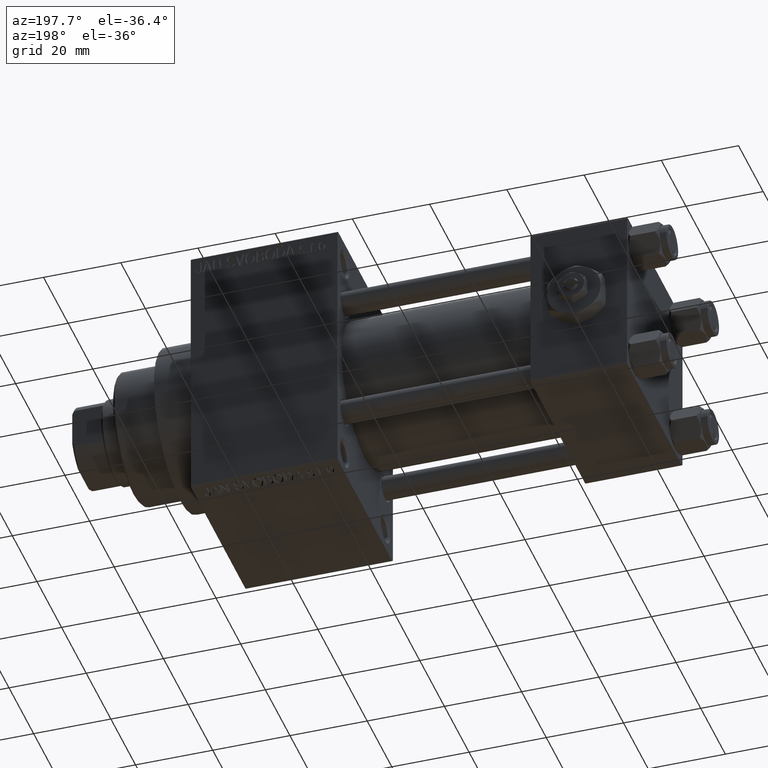
[diagram: clean part render]
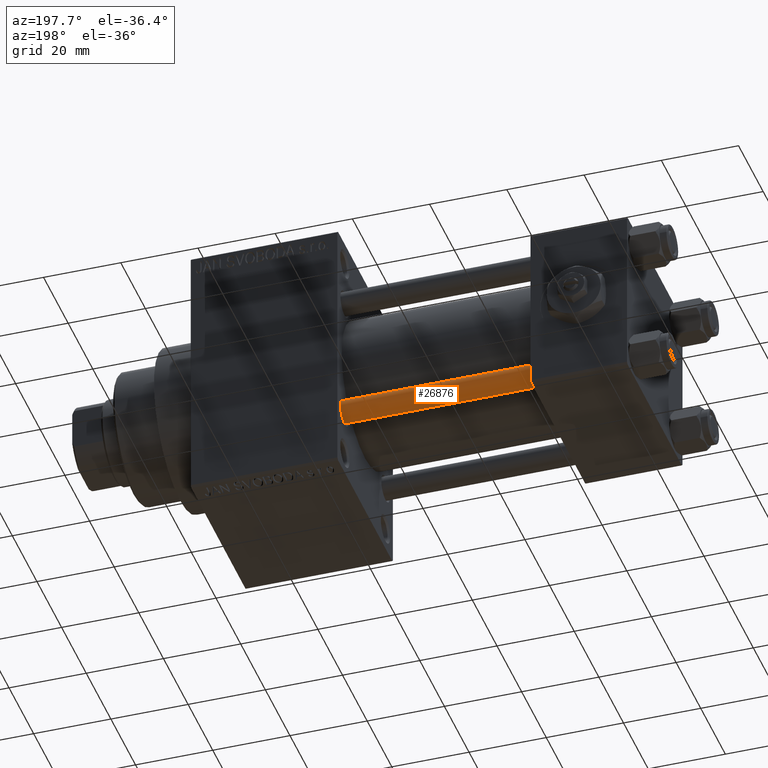
[diagram: same view with one face highlighted and labeled with its STEP entity id]
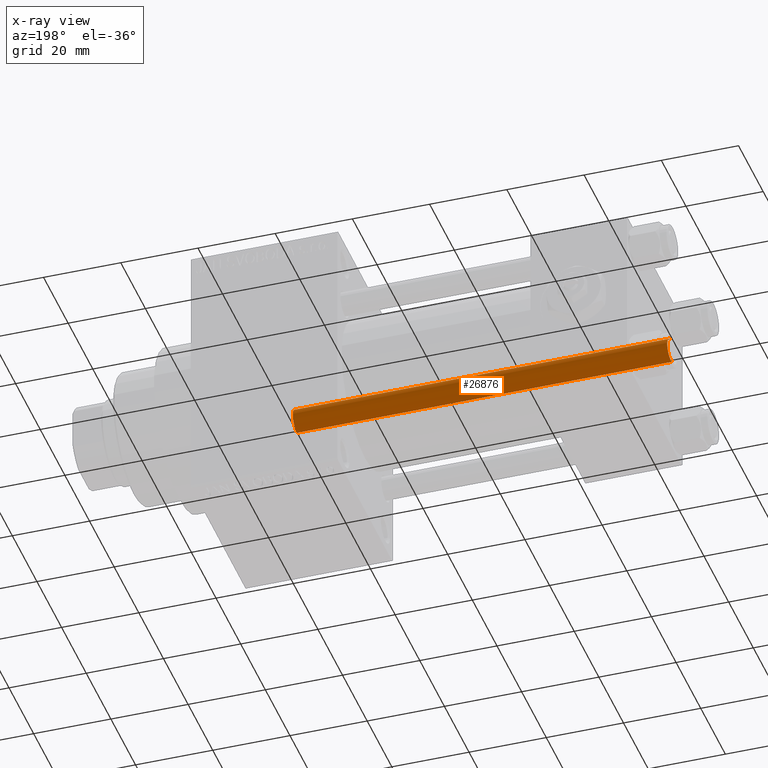
[diagram: x-ray of the same camera — body ghosted, the highlighted face saturated]
A machine part, auxiliary view. The second image highlights one B-rep face of the part: STEP entity #26876.
The next image is the same camera in x-ray: the body ghosted, the highlighted face saturated — about 0% of this face is hidden behind the body in this view.
In plain terms, the highlighted cylindrical surface (edge-blend (fillet) strip) has radius 3 mm, axis along (1, -0, 0).
Its self-contained STEP definition (entity closure, byte-faithful):
#2924 = CARTESIAN_POINT ( 'NONE',  ( 3.000000000000000444, 3.673940397442060361E-16, 97.50000000000001421 ) ) ;
#4080 = CARTESIAN_POINT ( 'NONE',  ( 3.000000000000000444, 3.673940397442060361E-16, 98.00000000000000000 ) ) ;
#4859 = VECTOR ( 'NONE', #30741, 1000.000000000000000 ) ;
#7328 = VERTEX_POINT ( 'NONE', #39805 ) ;
#10661 = VERTEX_POINT ( 'NONE', #26537 ) ;
#11810 = DIRECTION ( 'NONE',  ( 1.000000000000000000, 0.000000000000000000, 0.000000000000000000 ) ) ;
#12189 = CARTESIAN_POINT ( 'NONE',  ( 0.000000000000000000, 0.000000000000000000, 97.50000000000001421 ) ) ;
#13746 = ORIENTED_EDGE ( 'NONE', *, *, #17641, .F. ) ;
#15646 = DIRECTION ( 'NONE',  ( 0.000000000000000000, 0.000000000000000000, -1.000000000000000000 ) ) ;
#15959 = EDGE_CURVE ( 'NONE', #38073, #10661, #19389, .T. ) ;
#17641 = EDGE_CURVE ( 'NONE', #39885, #7328, #44449, .T. ) ;
#18102 = AXIS2_PLACEMENT_3D ( 'NONE', #26383, #30575, #11810 ) ;
#18450 = EDGE_LOOP ( 'NONE', ( #25845, #32292, #33316, #13746 ) ) ;
#19389 = LINE ( 'NONE', #4080, #4859 ) ;
#21925 = EDGE_CURVE ( 'NONE', #39885, #38073, #23885, .T. ) ;
#21949 = DIRECTION ( 'NONE',  ( -0.000000000000000000, -0.000000000000000000, -1.000000000000000000 ) ) ;
#23885 = CIRCLE ( 'NONE', #33359, 3.000000000000000444 ) ;
#25440 = VECTOR ( 'NONE', #21949, 1000.000000000000000 ) ;
#25845 = ORIENTED_EDGE ( 'NONE', *, *, #21925, .T. ) ;
#26383 = CARTESIAN_POINT ( 'NONE',  ( 0.000000000000000000, 0.000000000000000000, 0.5000000000000281997 ) ) ;
#26537 = CARTESIAN_POINT ( 'NONE',  ( 3.000000000000000444, 3.673940397442060361E-16, 0.5000000000000281997 ) ) ;
#26876 = ADVANCED_FACE ( 'NONE', ( #42787 ), #34637, .T. ) ;
#27688 = DIRECTION ( 'NONE',  ( -0.000000000000000000, -0.000000000000000000, -1.000000000000000000 ) ) ;
#29996 = EDGE_CURVE ( 'NONE', #10661, #7328, #39408, .T. ) ;
#30575 = DIRECTION ( 'NONE',  ( -0.000000000000000000, -0.000000000000000000, 1.000000000000000000 ) ) ;
#30741 = DIRECTION ( 'NONE',  ( -0.000000000000000000, -0.000000000000000000, -1.000000000000000000 ) ) ;
#32292 = ORIENTED_EDGE ( 'NONE', *, *, #15959, .T. ) ;
#33316 = ORIENTED_EDGE ( 'NONE', *, *, #29996, .T. ) ;
#33359 = AXIS2_PLACEMENT_3D ( 'NONE', #12189, #15646, #43067 ) ;
#34637 = CYLINDRICAL_SURFACE ( 'NONE', #38224, 3.000000000000000444 ) ;
#38073 = VERTEX_POINT ( 'NONE', #2924 ) ;
#38224 = AXIS2_PLACEMENT_3D ( 'NONE', #46001, #27688, #38591 ) ;
#38591 = DIRECTION ( 'NONE',  ( -1.000000000000000000, 0.000000000000000000, 0.000000000000000000 ) ) ;
#39408 = CIRCLE ( 'NONE', #18102, 3.000000000000000444 ) ;
#39805 = CARTESIAN_POINT ( 'NONE',  ( -3.000000000000000444, 0.000000000000000000, 0.5000000000000281997 ) ) ;
#39885 = VERTEX_POINT ( 'NONE', #42008 ) ;
#40250 = CARTESIAN_POINT ( 'NONE',  ( -3.000000000000000444, 0.000000000000000000, 98.00000000000000000 ) ) ;
#42008 = CARTESIAN_POINT ( 'NONE',  ( -3.000000000000000444, 0.000000000000000000, 97.50000000000001421 ) ) ;
#42787 = FACE_OUTER_BOUND ( 'NONE', #18450, .T. ) ;
#43067 = DIRECTION ( 'NONE',  ( 1.000000000000000000, 0.000000000000000000, 0.000000000000000000 ) ) ;
#44449 = LINE ( 'NONE', #40250, #25440 ) ;
#46001 = CARTESIAN_POINT ( 'NONE',  ( 0.000000000000000000, 0.000000000000000000, 98.00000000000000000 ) ) ;